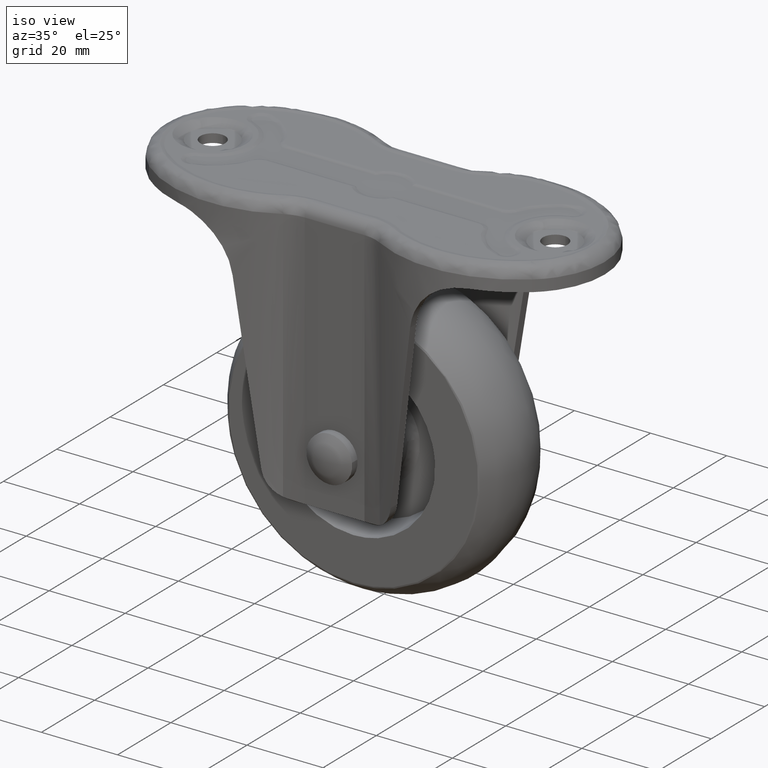
[diagram: clean part render]
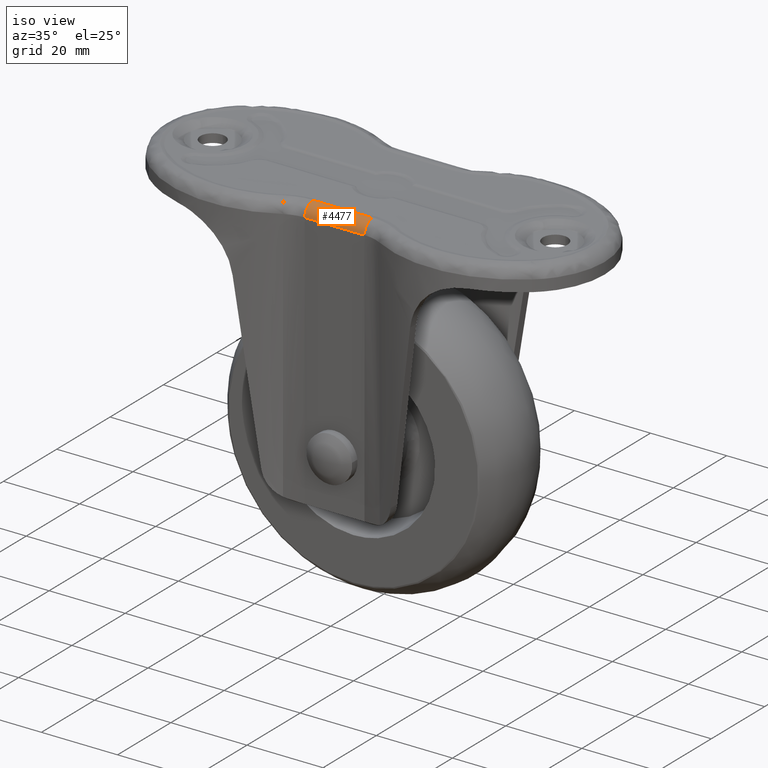
[diagram: same view with one face highlighted and labeled with its STEP entity id]
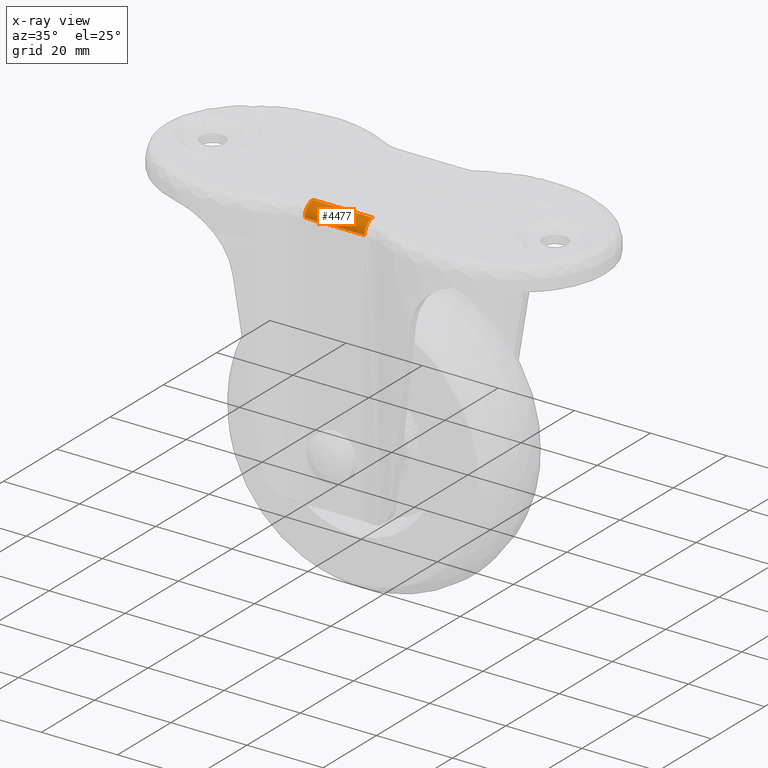
[diagram: x-ray of the same camera — body ghosted, the highlighted face saturated]
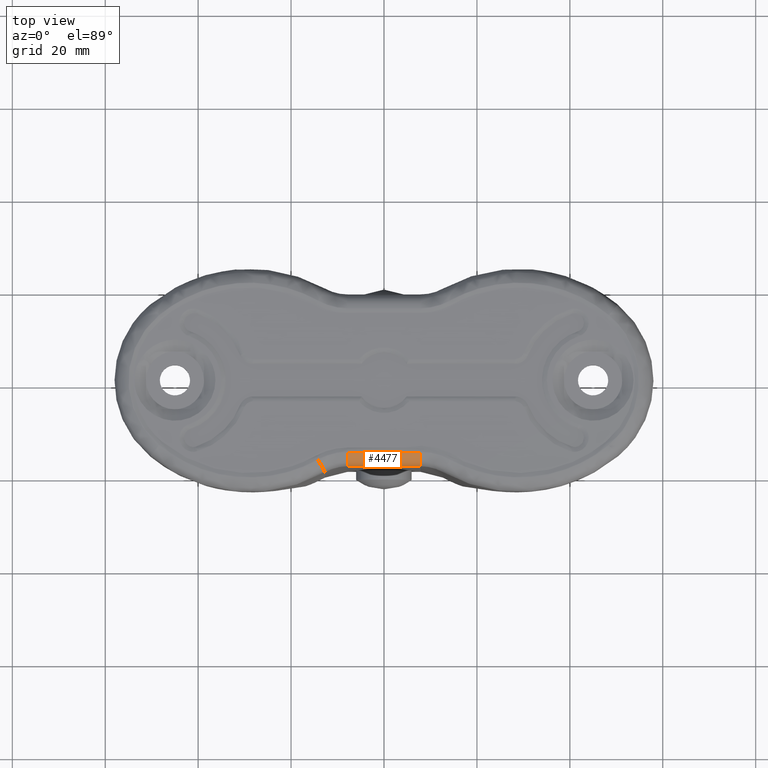
[diagram: same view with one face highlighted and labeled with its STEP entity id]
A machine part, iso view. The second image highlights one B-rep face of the part: STEP entity #4477.
The next image is the same camera in x-ray: the body ghosted, the highlighted face saturated — about 0% of this face is hidden behind the body in this view.
A second angle (top view) of the same face is appended — the face is thin or edge-on in the first view.
In plain terms, the highlighted face is a freeform B-spline surface patch.
Its self-contained STEP definition (entity closure, byte-faithful):
#4387=CARTESIAN_POINT('',(-7.843161000000100,-18.500000000000000,-3.0));
#4388=VERTEX_POINT('',#4387);
#4402=CARTESIAN_POINT('',(-7.843161000000100,-15.500000000000000,0.0));
#4403=VERTEX_POINT('',#4402);
#4404=CARTESIAN_POINT('',(-7.843161000000100,-18.500000000000000,-3.0));
#4405=CARTESIAN_POINT('',(-7.843161000000099,-18.500000000000000,0.0));
#4406=CARTESIAN_POINT('',(-7.843161000000100,-15.500000000000000,0.0));
#4414=(BOUNDED_CURVE()B_SPLINE_CURVE(2,(#4404,#4405,#4406),.UNSPECIFIED.,.F.,.U.)CURVE()GEOMETRIC_REPRESENTATION_ITEM()QUASI_UNIFORM_CURVE()RATIONAL_B_SPLINE_CURVE((1.0,0.707106781186548,1.0))REPRESENTATION_ITEM(''));
#4415=EDGE_CURVE('',#4388,#4403,#4414,.T.);
#4433=CARTESIAN_POINT('',(8.235319049999891,-15.421469155076380,-0.001028025073329));
#4434=CARTESIAN_POINT('',(-8.245123001250102,-15.421469155076380,-0.001028025073329));
#4435=CARTESIAN_POINT('',(8.235319049999891,-18.694272765782344,0.084673353587972));
#4436=CARTESIAN_POINT('',(-8.245123001250102,-18.694272765782344,0.084673353587972));
#4437=CARTESIAN_POINT('',(8.235319049999891,-18.494404395265601,-3.183145618604566));
#4438=CARTESIAN_POINT('',(-8.245123001250102,-18.494404395265601,-3.183145618604566));
#4446=(BOUNDED_SURFACE()B_SPLINE_SURFACE(1,2,((#4433,#4435,#4437),(#4434,#4436,#4438)),.UNSPECIFIED.,.F.,.F.,.U.)B_SPLINE_SURFACE_WITH_KNOTS((2,2),(3,3),(0.0,16.480442051250002),(0.0,5.280126370701996),.UNSPECIFIED.)GEOMETRIC_REPRESENTATION_ITEM()RATIONAL_B_SPLINE_SURFACE(((1.0,0.675590207615660,1.0),(1.0,0.675590207615660,1.0)))REPRESENTATION_ITEM('')SURFACE());
#4447=CARTESIAN_POINT('',(7.843160999999890,-18.500000000000000,-3.0));
#4448=VERTEX_POINT('',#4447);
#4449=CARTESIAN_POINT('',(7.843160999999890,-15.500000000000000,0.0));
#4450=VERTEX_POINT('',#4449);
#4451=CARTESIAN_POINT('',(7.843160999999890,-18.500000000000000,-3.0));
#4452=CARTESIAN_POINT('',(7.843160999999890,-18.500000000000000,0.0));
#4453=CARTESIAN_POINT('',(7.843160999999890,-15.500000000000000,0.0));
#4461=(BOUNDED_CURVE()B_SPLINE_CURVE(2,(#4451,#4452,#4453),.UNSPECIFIED.,.F.,.U.)CURVE()GEOMETRIC_REPRESENTATION_ITEM()QUASI_UNIFORM_CURVE()RATIONAL_B_SPLINE_CURVE((1.0,0.707106781186548,1.0))REPRESENTATION_ITEM(''));
#4462=EDGE_CURVE('',#4448,#4450,#4461,.T.);
#4463=ORIENTED_EDGE('',*,*,#4462,.T.);
#4464=CARTESIAN_POINT('',(-7.843161000000100,-15.500000000000000,0.0));
#4465=CARTESIAN_POINT('',(7.843160999999890,-15.500000000000000,0.0));
#4466=QUASI_UNIFORM_CURVE('',1,(#4464,#4465),.UNSPECIFIED.,.F.,.U.);
#4467=EDGE_CURVE('',#4403,#4450,#4466,.T.);
#4468=ORIENTED_EDGE('',*,*,#4467,.F.);
#4469=ORIENTED_EDGE('',*,*,#4415,.F.);
#4470=CARTESIAN_POINT('',(7.843160999999890,-18.500000000000000,-3.0));
#4471=CARTESIAN_POINT('',(-7.843161000000100,-18.500000000000000,-3.0));
#4472=QUASI_UNIFORM_CURVE('',1,(#4470,#4471),.UNSPECIFIED.,.F.,.U.);
#4473=EDGE_CURVE('',#4448,#4388,#4472,.T.);
#4474=ORIENTED_EDGE('',*,*,#4473,.F.);
#4475=EDGE_LOOP('',(#4463,#4468,#4469,#4474));
#4476=FACE_OUTER_BOUND('',#4475,.T.);
#4477=ADVANCED_FACE('',(#4476),#4446,.T.);